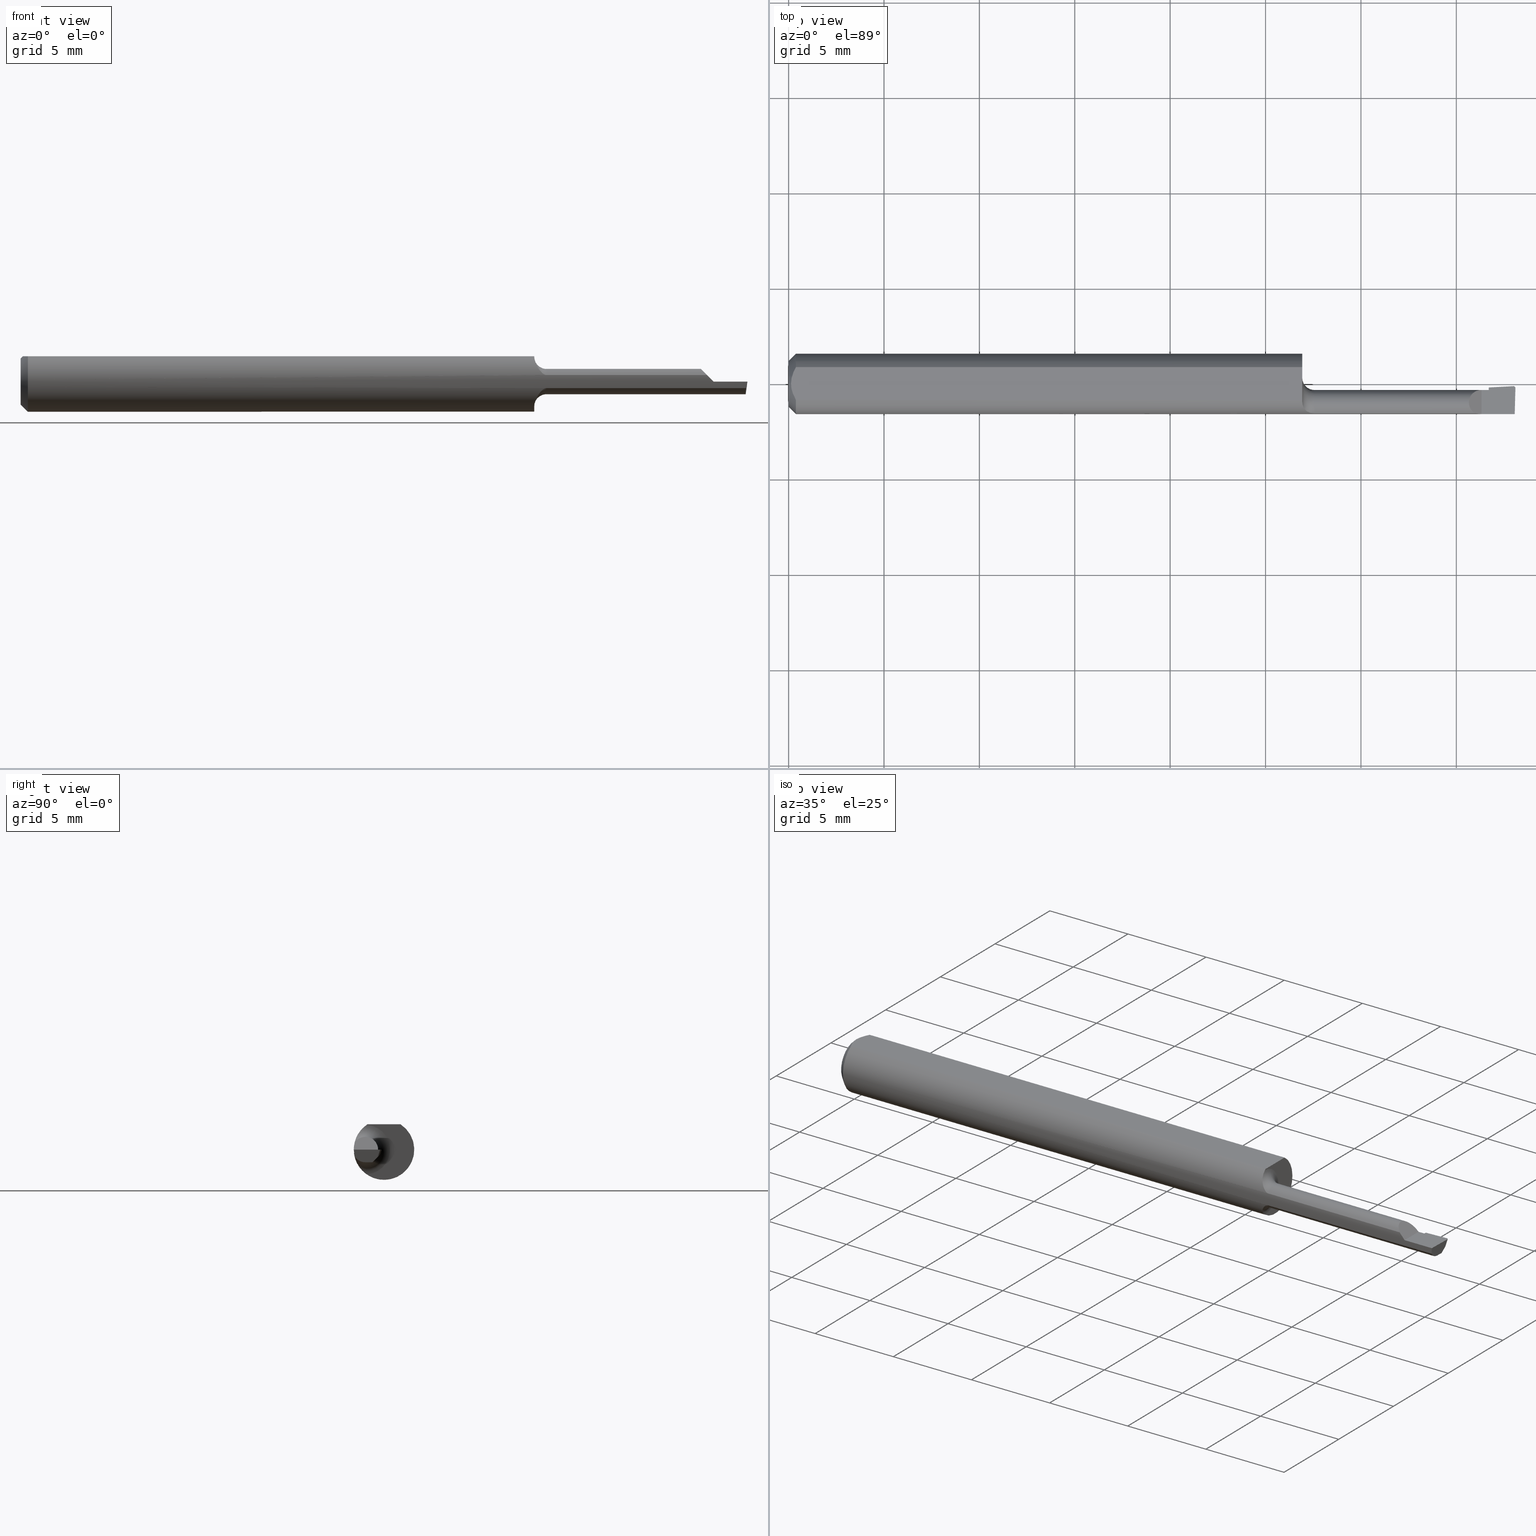
[diagram: canonical four-view strip — front | top / right | iso, engineering-drawing reading convention]
A machine part, canonical four-view strip (front | top / right | iso — engineering-drawing reading convention). The complete STEP part file that produces these views, byte-faithful:
ISO-10303-21;
HEADER;
FILE_DESCRIPTION (( 'STEP AP214' ),
    '1' );
FILE_NAME ('B060400R.STEP',
    '2020-05-08T20:18:05',
    ( '' ),
    ( '' ),
    'SwSTEP 2.0',
    'SolidWorks 2018',
    '' );
FILE_SCHEMA (( 'AUTOMOTIVE_DESIGN' ));
ENDSEC;

DATA;
#1 = FACE_OUTER_BOUND ( 'NONE', #242, .T. ) ;
#2 = SURFACE_STYLE_FILL_AREA ( #249 ) ;
#3 = ORIENTED_EDGE ( 'NONE', *, *, #261, .F. ) ;
#4 = AXIS2_PLACEMENT_3D ( 'NONE', #352, #344, #346 ) ;
#5 = LENGTH_MEASURE_WITH_UNIT ( LENGTH_MEASURE( 0.02539999999999999897 ), #191 );
#6 = EDGE_CURVE ( 'NONE', #529, #19, #409, .T. ) ;
#7 = ORIENTED_EDGE ( 'NONE', *, *, #559, .T. ) ;
#8 = VECTOR ( 'NONE', #112, 39.37007874015748143 ) ;
#9 = CARTESIAN_POINT ( 'NONE',  ( 1.397264918367745690, -0.01235000000000002068, 0.03273508163225391510 ) ) ;
#10 =( BOUNDED_CURVE ( )  B_SPLINE_CURVE ( 3, ( #16, #68, #9, #574 ),
 .UNSPECIFIED., .F., .T. ) 
 B_SPLINE_CURVE_WITH_KNOTS ( ( 4, 4 ),
 ( 5.257763968430261059, 7.853981633974482790 ),
 .UNSPECIFIED. ) 
 CURVE ( )  GEOMETRIC_REPRESENTATION_ITEM ( )  RATIONAL_B_SPLINE_CURVE ( ( 1.000000000000000000, 0.5128803992295699610, 0.5128803992295699610, 1.000000000000000000 ) ) 
 REPRESENTATION_ITEM ( '' )  );
#11 = DIRECTION ( 'NONE',  ( 0.03700710955925855944, -0.7061377159181306817, 0.7071067811865434649 ) ) ;
#12 = CLOSED_SHELL ( 'NONE', ( #368, #316, #84, #608, #132, #313, #175, #40, #519, #219, #560, #415, #470, #517, #87, #564, #267 ) ) ;
#13 =( CONVERSION_BASED_UNIT ( 'INCH', #5 ) LENGTH_UNIT ( ) NAMED_UNIT ( #43 ) );
#14 = DIRECTION ( 'NONE',  ( 0.0000000000000000000, -1.000000000000000000, 2.134256245050205023E-17 ) ) ;
#15 = CARTESIAN_POINT ( 'NONE',  ( 1.495896647546085756, -0.03839254993447095698, -0.02614999999999999963 ) ) ;
#16 = CARTESIAN_POINT ( 'NONE',  ( 1.416434982561967981, -0.06085649350649352529, 0.01356501743803199302 ) ) ;
#17 =( BOUNDED_CURVE ( )  B_SPLINE_CURVE ( 3, ( #402, #206, #384, #547 ),
 .UNSPECIFIED., .F., .T. ) 
 B_SPLINE_CURVE_WITH_KNOTS ( ( 4, 4 ),
 ( 3.498408556467773600, 3.548590298948255839 ),
 .UNSPECIFIED. ) 
 CURVE ( )  GEOMETRIC_REPRESENTATION_ITEM ( )  RATIONAL_B_SPLINE_CURVE ( ( 1.000000000000000000, 0.9997901604025566380, 0.9997901604025566380, 1.000000000000000000 ) ) 
 REPRESENTATION_ITEM ( '' )  );
#18 = ORIENTED_EDGE ( 'NONE', *, *, #548, .T. ) ;
#19 = VERTEX_POINT ( 'NONE', #399 ) ;
#20 = EDGE_CURVE ( 'NONE', #391, #319, #502, .T. ) ;
#21 = DIRECTION ( 'NONE',  ( 0.0000000000000000000, 1.000000000000000000, 0.0000000000000000000 ) ) ;
#22 = DIRECTION ( 'NONE',  ( -1.000000000000000000, 5.691349986800549142E-18, -0.0000000000000000000 ) ) ;
#23 = CARTESIAN_POINT ( 'NONE',  ( 1.494960264754920720, -0.01103316446899473349, -0.006784436861484915114 ) ) ;
#24 = DIRECTION ( 'NONE',  ( 0.0000000000000000000, -1.000000000000000000, 0.0000000000000000000 ) ) ;
#25 = ORIENTED_EDGE ( 'NONE', *, *, #120, .F. ) ;
#26 = PLANE ( 'NONE',  #35 ) ;
#27 = CARTESIAN_POINT ( 'NONE',  ( 1.499949488805471187, -0.006278944696461584429, -5.017238828917651622E-19 ) ) ;
#28 = CARTESIAN_POINT ( 'NONE',  ( 1.493191430590185220, -0.02563133555234555633, -0.05089529022621226001 ) ) ;
#29 = FACE_OUTER_BOUND ( 'NONE', #183, .T. ) ;
#30 = EDGE_CURVE ( 'NONE', #473, #348, #371, .T. ) ;
#31 = CARTESIAN_POINT ( 'NONE',  ( 0.01500000000000000465, 0.03386738844375223462, 0.05234999999999997988 ) ) ;
#32 =( CONVERSION_BASED_UNIT ( 'INCH', #573 ) LENGTH_UNIT ( ) NAMED_UNIT ( #566 ) );
#33 = ORIENTED_EDGE ( 'NONE', *, *, #609, .F. ) ;
#34 = CARTESIAN_POINT ( 'NONE',  ( 0.006064493299689842180, 0.01189382783781397189, 0.05235000000000000070 ) ) ;
#35 = AXIS2_PLACEMENT_3D ( 'NONE', #459, #430, #296 ) ;
#36 =( BOUNDED_CURVE ( )  B_SPLINE_CURVE ( 3, ( #83, #603, #600, #213 ),
 .UNSPECIFIED., .F., .T. ) 
 B_SPLINE_CURVE_WITH_KNOTS ( ( 4, 4 ),
 ( 3.120530056913264350, 4.677555823278194858 ),
 .UNSPECIFIED. ) 
 CURVE ( )  GEOMETRIC_REPRESENTATION_ITEM ( )  RATIONAL_B_SPLINE_CURVE ( ( 1.000000000000000000, 0.8079724067867785076, 0.8079724067867785076, 1.000000000000000000 ) ) 
 REPRESENTATION_ITEM ( '' )  );
#37 = FILL_AREA_STYLE_COLOUR ( '', #523 ) ;
#38 = LINE ( 'NONE', #435, #292 ) ;
#39 = EDGE_CURVE ( 'NONE', #19, #357, #280, .T. ) ;
#40 = ADVANCED_FACE ( 'NONE', ( #1 ), #133, .T. ) ;
#41 = ORIENTED_EDGE ( 'NONE', *, *, #136, .T. ) ;
#42 = TOROIDAL_SURFACE ( 'NONE', #321, 0.05114999999999995245, 0.02500000000000000139 ) ;
#43 = DIMENSIONAL_EXPONENTS ( 1.000000000000000000, 0.0000000000000000000, 0.0000000000000000000, 0.0000000000000000000, 0.0000000000000000000, 0.0000000000000000000, 0.0000000000000000000 ) ;
#44 = ORIENTED_EDGE ( 'NONE', *, *, #79, .F. ) ;
#45 = AXIS2_PLACEMENT_3D ( 'NONE', #193, #494, #146 ) ;
#46 = ORIENTED_EDGE ( 'NONE', *, *, #113, .T. ) ;
#47 = EDGE_CURVE ( 'NONE', #331, #353, #209, .T. ) ;
#48 = VECTOR ( 'NONE', #544, 39.37007874015748143 ) ;
#49 = LINE ( 'NONE', #15, #428 ) ;
#50 = CARTESIAN_POINT ( 'NONE',  ( 0.009678036133109307534, -0.02325481837211496039, 0.05235000000000000070 ) ) ;
#51 = LINE ( 'NONE', #577, #405 ) ;
#52 = EDGE_CURVE ( 'NONE', #126, #471, #139, .T. ) ;
#53 = LINE ( 'NONE', #281, #423 ) ;
#54 = APPLICATION_PROTOCOL_DEFINITION ( 'draft international standard', 'automotive_design', 1998, #465 ) ;
#55 = AXIS2_PLACEMENT_3D ( 'NONE', #290, #446, #500 ) ;
#56 = CARTESIAN_POINT ( 'NONE',  ( 1.435089080240952830, -0.007751837155790511705, 0.0000000000000000000 ) ) ;
#57 = PRODUCT_DEFINITION ( 'UNKNOWN', '', #89, #451 ) ;
#58 = DIRECTION ( 'NONE',  ( 4.027150758739159230E-18, 0.7075914797155294922, 0.7066217501846282500 ) ) ;
#59 = ORIENTED_EDGE ( 'NONE', *, *, #6, .T. ) ;
#60 = ORIENTED_EDGE ( 'NONE', *, *, #140, .F. ) ;
#61 = CARTESIAN_POINT ( 'NONE',  ( 0.006057557792978140489, -0.01187252718384441616, 0.05234999999999998682 ) ) ;
#62 = CARTESIAN_POINT ( 'NONE',  ( 1.060000000000000275, 0.0000000000000000000, 0.0000000000000000000 ) ) ;
#63 = CONICAL_SURFACE ( 'NONE', #509, 0.06235000000000000264, 0.7853981633974594923 ) ;
#64 = EDGE_CURVE ( 'NONE', #19, #477, #51, .T. ) ;
#65 = VECTOR ( 'NONE', #253, 39.37007874015748143 ) ;
#66 = CARTESIAN_POINT ( 'NONE',  ( 1.494500809590397550, -0.007891856341998546714, -0.01000000000000000021 ) ) ;
#67 = CARTESIAN_POINT ( 'NONE',  ( 1.499230452013073922, -0.02381614967368950175, -0.02614999999999999963 ) ) ;
#68 = CARTESIAN_POINT ( 'NONE',  ( 1.388448686579328406, -0.04387553927410643012, 0.04155131342067137912 ) ) ;
#69 = CIRCLE ( 'NONE', #78, 0.06235000000000000264 ) ;
#70 = FACE_OUTER_BOUND ( 'NONE', #173, .T. ) ;
#71 = CARTESIAN_POINT ( 'NONE',  ( 0.0000000000000000000, 0.0000000000000000000, 0.0000000000000000000 ) ) ;
#72 = DIRECTION ( 'NONE',  ( 0.0000000000000000000, 0.0000000000000000000, 1.000000000000000000 ) ) ;
#73 = ORIENTED_EDGE ( 'NONE', *, *, #424, .T. ) ;
#74 = ORIENTED_EDGE ( 'NONE', *, *, #588, .F. ) ;
#75 = EDGE_LOOP ( 'NONE', ( #215, #421 ) ) ;
#76 = B_SPLINE_CURVE_WITH_KNOTS ( 'NONE', 3,
 ( #438, #228, #50, #61, #164, #351 ),
 .UNSPECIFIED., .F., .F.,
 ( 4, 2, 4 ),
 ( 0.002133667072902290657, 0.002585433046183636171, 0.003037199019464981685 ),
 .UNSPECIFIED. ) ;
#77 = PLANE ( 'NONE',  #370 ) ;
#78 = AXIS2_PLACEMENT_3D ( 'NONE', #62, #339, #21 ) ;
#79 = EDGE_CURVE ( 'NONE', #353, #134, #268, .T. ) ;
#80 = CYLINDRICAL_SURFACE ( 'NONE', #192, 0.02614999999999998229 ) ;
#81 = CARTESIAN_POINT ( 'NONE',  ( 1.080433207467613288, -0.06062583751170534663, 0.01462750901418235876 ) ) ;
#82 = ORIENTED_EDGE ( 'NONE', *, *, #225, .F. ) ;
#83 = CARTESIAN_POINT ( 'NONE',  ( 1.494702186530211918, -0.007889156140322761690, -0.01000784275356722715 ) ) ;
#84 = ADVANCED_FACE ( 'NONE', ( #29 ), #154, .T. ) ;
#85 = LINE ( 'NONE', #262, #513 ) ;
#86 = VECTOR ( 'NONE', #337, 39.37007874015747433 ) ;
#87 = ADVANCED_FACE ( 'NONE', ( #611 ), #295, .F. ) ;
#88 = EDGE_CURVE ( 'NONE', #391, #567, #380, .T. ) ;
#89 = PRODUCT_DEFINITION_FORMATION_WITH_SPECIFIED_SOURCE ( 'ANY', '', #212, .NOT_KNOWN. ) ;
#90 = ORIENTED_EDGE ( 'NONE', *, *, #113, .F. ) ;
#91 = LINE ( 'NONE', #388, #8 ) ;
#92 = VERTEX_POINT ( 'NONE', #458 ) ;
#93 =( GEOMETRIC_REPRESENTATION_CONTEXT ( 3 ) GLOBAL_UNCERTAINTY_ASSIGNED_CONTEXT ( ( #311 ) ) GLOBAL_UNIT_ASSIGNED_CONTEXT ( ( #101, #239, #170 ) ) REPRESENTATION_CONTEXT ( 'NONE', 'WORKASPACE' ) );
#94 = CARTESIAN_POINT ( 'NONE',  ( 2.249639673992782033E-32, -0.06234999999999999570, 1.836970198721027715E-16 ) ) ;
#95 = EDGE_CURVE ( 'NONE', #92, #477, #426, .T. ) ;
#96 = DIRECTION ( 'NONE',  ( -1.000000000000000000, -0.0000000000000000000, -0.0000000000000000000 ) ) ;
#97 = ORIENTED_EDGE ( 'NONE', *, *, #365, .F. ) ;
#98 = CIRCLE ( 'NONE', #4, 0.06235000000000000264 ) ;
#99 = DIRECTION ( 'NONE',  ( 0.0000000000000000000, 0.0000000000000000000, 1.000000000000000000 ) ) ;
#100 = DIRECTION ( 'NONE',  ( -1.000000000000000000, -0.0000000000000000000, -0.0000000000000000000 ) ) ;
#101 =( CONVERSION_BASED_UNIT ( 'INCH', #516 ) LENGTH_UNIT ( ) NAMED_UNIT ( #522 ) );
#102 = VECTOR ( 'NONE', #530, 39.37007874015748143 ) ;
#103 = PLANE ( 'NONE',  #288 ) ;
#104 = VERTEX_POINT ( 'NONE', #66 ) ;
#105 = CARTESIAN_POINT ( 'NONE',  ( 1.494702186530211918, -0.007889156140322761690, -0.01000784275356722715 ) ) ;
#106 = ADVANCED_BREP_SHAPE_REPRESENTATION ( 'B060400R', ( #542, #444 ), #93 ) ;
#107 = PLANE ( 'NONE',  #222 ) ;
#108 = CARTESIAN_POINT ( 'NONE',  ( 1.064028026996482579, -0.05183160029813502212, -0.03490759449541482734 ) ) ;
#109 = VERTEX_POINT ( 'NONE', #105 ) ;
#110 = VECTOR ( 'NONE', #602, 39.37007874015748143 ) ;
#111 = AXIS2_PLACEMENT_3D ( 'NONE', #23, #343, #149 ) ;
#112 = DIRECTION ( 'NONE',  ( 0.02617694830789744909, 0.9996573249755567048, -3.158139334226725337E-18 ) ) ;
#113 = EDGE_CURVE ( 'NONE', #104, #109, #425, .T. ) ;
#114 = CARTESIAN_POINT ( 'NONE',  ( 1.060000000000000275, -0.03575909090909097643, 0.05107651042656856377 ) ) ;
#115 = ORIENTED_EDGE ( 'NONE', *, *, #417, .T. ) ;
#116 = CARTESIAN_POINT ( 'NONE',  ( 1.495893833867097289, -0.03849999999999999256, -0.02614999999999999963 ) ) ;
#117 = DIRECTION ( 'NONE',  ( 1.760906539122070846E-18, 0.3094005013232339341, 0.9509318218363140840 ) ) ;
#118 = CARTESIAN_POINT ( 'NONE',  ( 1.085000000000000187, -0.06085649350649354611, -0.01356501743803189067 ) ) ;
#119 = EDGE_LOOP ( 'NONE', ( #271, #33, #554 ) ) ;
#120 = EDGE_CURVE ( 'NONE', #134, #529, #174, .T. ) ;
#121 = CARTESIAN_POINT ( 'NONE',  ( 0.0000000000000000000, 0.0000000000000000000, 0.0000000000000000000 ) ) ;
#122 = PRODUCT_RELATED_PRODUCT_CATEGORY ( 'part', '', ( #212 ) ) ;
#123 = DIRECTION ( 'NONE',  ( 0.0000000000000000000, 0.0000000000000000000, -1.000000000000000000 ) ) ;
#124 = CARTESIAN_POINT ( 'NONE',  ( 1.061991179683118292, -0.04967762520113500752, 0.03862103888887214592 ) ) ;
#125 = EDGE_LOOP ( 'NONE', ( #604, #524, #515, #375, #147, #592 ) ) ;
#126 = VERTEX_POINT ( 'NONE', #244 ) ;
#127 = SURFACE_SIDE_STYLE ('',( #266 ) ) ;
#128 = AXIS2_PLACEMENT_3D ( 'NONE', #330, #361, #400 ) ;
#129 = EDGE_CURVE ( 'NONE', #341, #319, #76, .T. ) ;
#130 = ORIENTED_EDGE ( 'NONE', *, *, #176, .T. ) ;
#131 = LINE ( 'NONE', #297, #328 ) ;
#132 = ADVANCED_FACE ( 'NONE', ( #474 ), #586, .F. ) ;
#133 = CONICAL_SURFACE ( 'NONE', #232, 0.06235000000000000264, 0.7853981633974594923 ) ;
#134 = VERTEX_POINT ( 'NONE', #431 ) ;
#135 = VERTEX_POINT ( 'NONE', #248 ) ;
#136 = EDGE_CURVE ( 'NONE', #555, #529, #10, .T. ) ;
#137 =( BOUNDED_CURVE ( )  B_SPLINE_CURVE ( 3, ( #287, #342, #299, #301 ),
 .UNSPECIFIED., .F., .T. ) 
 B_SPLINE_CURVE_WITH_KNOTS ( ( 4, 4 ),
 ( 4.712388980384689674, 4.931705360090145263 ),
 .UNSPECIFIED. ) 
 CURVE ( )  GEOMETRIC_REPRESENTATION_ITEM ( )  RATIONAL_B_SPLINE_CURVE ( ( 1.000000000000000000, 0.9959957088194145713, 0.9959957088194145713, 1.000000000000000000 ) ) 
 REPRESENTATION_ITEM ( '' )  );
#138 = PLANE ( 'NONE',  #583 ) ;
#139 = CIRCLE ( 'NONE', #317, 0.06235000000000000264 ) ;
#140 = EDGE_CURVE ( 'NONE', #473, #579, #563, .T. ) ;
#141 = CARTESIAN_POINT ( 'NONE',  ( 1.080425629910829910, -0.06062459270466517836, -0.01463238755247351676 ) ) ;
#142 = DIRECTION ( 'NONE',  ( 0.9986295347545746104, 0.05233595624293017889, -0.0000000000000000000 ) ) ;
#143 = CARTESIAN_POINT ( 'NONE',  ( 1.445000000000000062, 0.003267572139432644955, 0.0000000000000000000 ) ) ;
#144 = CARTESIAN_POINT ( 'NONE',  ( 0.01500000000000000465, 0.0000000000000000000, -0.06235000000000000264 ) ) ;
#145 = CARTESIAN_POINT ( 'NONE',  ( 1.068001007934660240, -0.05603364408257451718, -0.02766379716794686514 ) ) ;
#146 = DIRECTION ( 'NONE',  ( 0.0000000000000000000, -1.000000000000000000, 0.0000000000000000000 ) ) ;
#147 = ORIENTED_EDGE ( 'NONE', *, *, #152, .T. ) ;
#148 = ORIENTED_EDGE ( 'NONE', *, *, #196, .T. ) ;
#149 = DIRECTION ( 'NONE',  ( 0.0000000000000000000, 0.9489888143754034999, -0.3153097369101784397 ) ) ;
#150 = PRODUCT_DEFINITION_SHAPE ( 'NONE', 'NONE',  #57 ) ;
#151 = DIRECTION ( 'NONE',  ( 1.000000000000000000, 0.0000000000000000000, 0.0000000000000000000 ) ) ;
#152 = EDGE_CURVE ( 'NONE', #331, #135, #276, .T. ) ;
#153 = DIRECTION ( 'NONE',  ( 1.000000000000000000, 0.0000000000000000000, 0.0000000000000000000 ) ) ;
#154 = CYLINDRICAL_SURFACE ( 'NONE', #487, 0.06235000000000000264 ) ;
#155 = ORIENTED_EDGE ( 'NONE', *, *, #218, .T. ) ;
#156 = DIRECTION ( 'NONE',  ( -0.7071067811865516806, 0.0000000000000000000, 0.7071067811865431318 ) ) ;
#157 = DIRECTION ( 'NONE',  ( 0.0000000000000000000, 0.0000000000000000000, -1.000000000000000000 ) ) ;
#158 = DIRECTION ( 'NONE',  ( 0.0000000000000000000, 0.0000000000000000000, 1.000000000000000000 ) ) ;
#159 = CARTESIAN_POINT ( 'NONE',  ( 1.060000000000000275, 0.1123499999999999915, 0.05234999999999998682 ) ) ;
#160 = LINE ( 'NONE', #597, #483 ) ;
#161 = CARTESIAN_POINT ( 'NONE',  ( 1.062503775457219524, -0.04920046092876605853, -0.03856495364018283634 ) ) ;
#162 = ORIENTED_EDGE ( 'NONE', *, *, #47, .T. ) ;
#163 = CARTESIAN_POINT ( 'NONE',  ( 1.494960264754920720, -0.01103316446899473349, -0.006784436861484915114 ) ) ;
#164 = CARTESIAN_POINT ( 'NONE',  ( 0.004999999999998879473, -0.005957634400466955450, 0.05235000000000000070 ) ) ;
#165 = EDGE_LOOP ( 'NONE', ( #214, #259, #596, #585, #234 ) ) ;
#166 = CARTESIAN_POINT ( 'NONE',  ( 1.060000000000000275, -0.03575909090909097643, 0.05107651042656856377 ) ) ;
#167 = ORIENTED_EDGE ( 'NONE', *, *, #525, .T. ) ;
#168 = CARTESIAN_POINT ( 'NONE',  ( 0.01218518006020415795, 0.02868529347538067639, 0.05235000000000000070 ) ) ;
#169 = EDGE_CURVE ( 'NONE', #178, #493, #17, .T. ) ;
#170 =( NAMED_UNIT ( * ) SI_UNIT ( $, .STERADIAN. ) SOLID_ANGLE_UNIT ( ) );
#171 = CARTESIAN_POINT ( 'NONE',  ( 1.076638124316706691, -0.05991341419477896196, 0.01731585959404105882 ) ) ;
#172 = LINE ( 'NONE', #159, #540 ) ;
#173 = EDGE_LOOP ( 'NONE', ( #229, #389, #537, #601, #495 ) ) ;
#174 = LINE ( 'NONE', #198, #274 ) ;
#175 = ADVANCED_FACE ( 'NONE', ( #207 ), #406, .F. ) ;
#176 = EDGE_CURVE ( 'NONE', #331, #224, #220, .T. ) ;
#177 = ORIENTED_EDGE ( 'NONE', *, *, #182, .F. ) ;
#178 = VERTEX_POINT ( 'NONE', #410 ) ;
#179 = EDGE_LOOP ( 'NONE', ( #208, #433, #511, #598 ) ) ;
#180 = FACE_OUTER_BOUND ( 'NONE', #309, .T. ) ;
#181 = CARTESIAN_POINT ( 'NONE',  ( 1.445000000000000062, -0.006227276823266426724, 0.003089297215203672554 ) ) ;
#182 = EDGE_CURVE ( 'NONE', #224, #326, #355, .T. ) ;
#183 = EDGE_LOOP ( 'NONE', ( #283, #162, #482, #243, #457, #282, #74, #155, #97, #467, #203, #397, #177 ) ) ;
#184 = ORIENTED_EDGE ( 'NONE', *, *, #448, .T. ) ;
#185 = CARTESIAN_POINT ( 'NONE',  ( 1.497375706250378302, -0.06185016300931096139, -0.009107135837653953722 ) ) ;
#186 = SURFACE_SIDE_STYLE ('',( #2 ) ) ;
#187 = CARTESIAN_POINT ( 'NONE',  ( 1.435259130070997813, -0.01099658120660709781, -0.01000000000000000021 ) ) ;
#188 = ORIENTED_EDGE ( 'NONE', *, *, #88, .F. ) ;
#189 = SURFACE_STYLE_USAGE ( .BOTH. , #186 ) ;
#190 = CARTESIAN_POINT ( 'NONE',  ( 1.498481216548989137, -0.06235000000000005121, 1.949268155119779707E-19 ) ) ;
#191 =( LENGTH_UNIT ( ) NAMED_UNIT ( * ) SI_UNIT ( $, .METRE. ) );
#192 = AXIS2_PLACEMENT_3D ( 'NONE', #582, #440, #538 ) ;
#193 = CARTESIAN_POINT ( 'NONE',  ( 1.060000000000000275, -0.03849999999999999256, 0.0000000000000000000 ) ) ;
#194 = EDGE_LOOP ( 'NONE', ( #535, #527, #60, #553 ) ) ;
#195 = VECTOR ( 'NONE', #260, 39.37007874015747433 ) ;
#196 = EDGE_CURVE ( 'NONE', #319, #126, #315, .T. ) ;
#197 = CARTESIAN_POINT ( 'NONE',  ( 1.496274287139041981, -0.02397107570993201389, -0.02614999999999999963 ) ) ;
#198 = CARTESIAN_POINT ( 'NONE',  ( 1.429999999999999938, -0.2500000000000000555, 8.572527594031471957E-18 ) ) ;
#199 = CARTESIAN_POINT ( 'NONE',  ( 1.494500809590397550, -0.007891856341998546714, -0.01000000000000000021 ) ) ;
#200 =( LENGTH_UNIT ( ) NAMED_UNIT ( * ) SI_UNIT ( $, .METRE. ) );
#201 = DIRECTION ( 'NONE',  ( 0.0000000000000000000, -1.000000000000000000, 0.0000000000000000000 ) ) ;
#202 = DIRECTION ( 'NONE',  ( -0.0000000000000000000, 1.000000000000000000, -0.0000000000000000000 ) ) ;
#203 = ORIENTED_EDGE ( 'NONE', *, *, #347, .T. ) ;
#204 = AXIS2_PLACEMENT_3D ( 'NONE', #497, #22, #24 ) ;
#205 = DIRECTION ( 'NONE',  ( -5.691349986800549142E-18, -1.000000000000000000, 7.598598113218357399E-17 ) ) ;
#206 = CARTESIAN_POINT ( 'NONE',  ( 1.495951054303326311, -0.004563963874761001356, -1.205688142659576651E-20 ) ) ;
#207 = FACE_OUTER_BOUND ( 'NONE', #75, .T. ) ;
#208 = ORIENTED_EDGE ( 'NONE', *, *, #378, .T. ) ;
#209 =( BOUNDED_CURVE ( )  B_SPLINE_CURVE ( 3, ( #541, #185, #528, #190 ),
 .UNSPECIFIED., .F., .T. ) 
 B_SPLINE_CURVE_WITH_KNOTS ( ( 4, 4 ),
 ( 1.141430502809118508, 1.360746882514575651 ),
 .UNSPECIFIED. ) 
 CURVE ( )  GEOMETRIC_REPRESENTATION_ITEM ( )  RATIONAL_B_SPLINE_CURVE ( ( 1.000000000000000000, 0.9959957088194145713, 0.9959957088194145713, 1.000000000000000000 ) ) 
 REPRESENTATION_ITEM ( '' )  );
#210 = DIRECTION ( 'NONE',  ( -1.000000000000000000, 5.691349986800549142E-18, -0.0000000000000000000 ) ) ;
#211 = CARTESIAN_POINT ( 'NONE',  ( 1.495648902069280251, -0.04785356799146874007, -0.02614999999999998576 ) ) ;
#212 = PRODUCT ( 'B060400R', 'B060400R', '', ( #245 ) ) ;
#213 = CARTESIAN_POINT ( 'NONE',  ( 1.497721008238358742, -0.01418889696632155868, -0.01645694292453164093 ) ) ;
#214 = ORIENTED_EDGE ( 'NONE', *, *, #273, .F. ) ;
#215 = ORIENTED_EDGE ( 'NONE', *, *, #225, .T. ) ;
#216 =( NAMED_UNIT ( * ) SI_UNIT ( $, .STERADIAN. ) SOLID_ANGLE_UNIT ( ) );
#217 = DIRECTION ( 'NONE',  ( -1.000000000000000000, 5.691349986800549142E-18, -0.0000000000000000000 ) ) ;
#218 = EDGE_CURVE ( 'NONE', #372, #341, #416, .T. ) ;
#219 = ADVANCED_FACE ( 'NONE', ( #531 ), #77, .T. ) ;
#220 = LINE ( 'NONE', #533, #102 ) ;
#221 = ORIENTED_EDGE ( 'NONE', *, *, #246, .F. ) ;
#222 = AXIS2_PLACEMENT_3D ( 'NONE', #386, #335, #14 ) ;
#223 = EDGE_LOOP ( 'NONE', ( #188, #369, #148, #475, #324 ) ) ;
#224 = VERTEX_POINT ( 'NONE', #118 ) ;
#225 = EDGE_CURVE ( 'NONE', #567, #391, #407, .T. ) ;
#226 = CARTESIAN_POINT ( 'NONE',  ( 1.082616656301558011, -0.06085649350649355999, -0.01356501743803187505 ) ) ;
#227 = ORIENTED_EDGE ( 'NONE', *, *, #485, .F. ) ;
#228 = CARTESIAN_POINT ( 'NONE',  ( 0.01216137397042175820, -0.02864146636719541034, 0.05235000000000000070 ) ) ;
#229 = ORIENTED_EDGE ( 'NONE', *, *, #498, .F. ) ;
#230 = CARTESIAN_POINT ( 'NONE',  ( 1.416434982561967981, -0.06085649350649352529, 0.01356501743803199302 ) ) ;
#231 = VECTOR ( 'NONE', #117, 39.37007874015748143 ) ;
#232 = AXIS2_PLACEMENT_3D ( 'NONE', #429, #395, #123 ) ;
#233 = CARTESIAN_POINT ( 'NONE',  ( 1.060000000000000275, -0.04345517994939344930, 0.04568841430687983762 ) ) ;
#234 = ORIENTED_EDGE ( 'NONE', *, *, #218, .F. ) ;
#235 = SHAPE_DEFINITION_REPRESENTATION ( #150, #106 ) ;
#236 = ORIENTED_EDGE ( 'NONE', *, *, #152, .F. ) ;
#237 = ORIENTED_EDGE ( 'NONE', *, *, #64, .F. ) ;
#238 = DIRECTION ( 'NONE',  ( 0.0000000000000000000, 0.0000000000000000000, 1.000000000000000000 ) ) ;
#239 =( NAMED_UNIT ( * ) PLANE_ANGLE_UNIT ( ) SI_UNIT ( $, .RADIAN. ) );
#240 = STYLED_ITEM ( 'NONE', ( #349 ), #106 ) ;
#241 = CARTESIAN_POINT ( 'NONE',  ( 1.496854179736618162, -0.06085649350649351141, -0.01356501743803198955 ) ) ;
#242 = EDGE_LOOP ( 'NONE', ( #379, #82, #305, #526, #536 ) ) ;
#243 = ORIENTED_EDGE ( 'NONE', *, *, #609, .T. ) ;
#244 = CARTESIAN_POINT ( 'NONE',  ( 0.01500000000000000465, 0.03386738844375223462, 0.05234999999999997988 ) ) ;
#245 = PRODUCT_CONTEXT ( 'NONE', #256, 'mechanical' ) ;
#246 = EDGE_CURVE ( 'NONE', #135, #357, #376, .T. ) ;
#247 = CARTESIAN_POINT ( 'NONE',  ( 0.004999999999989931769, 7.898418181085889318E-16, 0.05235000000000000070 ) ) ;
#248 = CARTESIAN_POINT ( 'NONE',  ( 1.495893833867097289, -0.03849999999999999256, -0.02614999999999999963 ) ) ;
#249 = FILL_AREA_STYLE ('',( #436 ) ) ;
#250 = CARTESIAN_POINT ( 'NONE',  ( 1.085000000000000187, -0.03849999999999999256, 0.0000000000000000000 ) ) ;
#251 = VECTOR ( 'NONE', #329, 39.37007874015747433 ) ;
#252 = ORIENTED_EDGE ( 'NONE', *, *, #169, .T. ) ;
#253 = DIRECTION ( 'NONE',  ( -1.000000000000000000, -0.0000000000000000000, -0.0000000000000000000 ) ) ;
#254 = DIRECTION ( 'NONE',  ( 0.0000000000000000000, 0.9489888143754034999, -0.3153097369101784397 ) ) ;
#255 = ORIENTED_EDGE ( 'NONE', *, *, #396, .F. ) ;
#256 = APPLICATION_CONTEXT ( 'automotive_design' ) ;
#257 = VERTEX_POINT ( 'NONE', #302 ) ;
#258 = STYLED_ITEM ( 'NONE', ( #488 ), #542 ) ;
#259 = ORIENTED_EDGE ( 'NONE', *, *, #347, .F. ) ;
#260 = DIRECTION ( 'NONE',  ( -0.1238567106546049346, -0.3128818877194481374, -0.9416817082023715146 ) ) ;
#261 = EDGE_CURVE ( 'NONE', #493, #477, #160, .T. ) ;
#262 = CARTESIAN_POINT ( 'NONE',  ( 1.445000000000000062, -0.03849999999999999256, -0.02614999999999999963 ) ) ;
#263 = ORIENTED_EDGE ( 'NONE', *, *, #261, .T. ) ;
#264 = LINE ( 'NONE', #187, #300 ) ;
#265 = CARTESIAN_POINT ( 'NONE',  ( 1.085000000000000187, -0.06085649350649354611, 0.01356501743803188893 ) ) ;
#266 = SURFACE_STYLE_FILL_AREA ( #466 ) ;
#267 = ADVANCED_FACE ( 'NONE', ( #308 ), #565, .T. ) ;
#268 = LINE ( 'NONE', #94, #65 ) ;
#269 = FACE_OUTER_BOUND ( 'NONE', #119, .T. ) ;
#270 = EDGE_LOOP ( 'NONE', ( #545, #115, #489, #7 ) ) ;
#271 = ORIENTED_EDGE ( 'NONE', *, *, #136, .F. ) ;
#272 = PRESENTATION_LAYER_ASSIGNMENT (  '', '', ( #240 ) ) ;
#273 = EDGE_CURVE ( 'NONE', #257, #372, #172, .T. ) ;
#274 = VECTOR ( 'NONE', #202, 39.37007874015748143 ) ;
#275 = CARTESIAN_POINT ( 'NONE',  ( 0.0000000000000000000, 0.0000000000000000000, 0.0000000000000000000 ) ) ;
#276 =( BOUNDED_CURVE ( )  B_SPLINE_CURVE ( 3, ( #336, #340, #211, #116 ),
 .UNSPECIFIED., .F., .F. ) 
 B_SPLINE_CURVE_WITH_KNOTS ( ( 4, 4 ),
 ( 5.467813412710585297, 6.493234751459907805 ),
 .UNSPECIFIED. ) 
 CURVE ( )  GEOMETRIC_REPRESENTATION_ITEM ( )  RATIONAL_B_SPLINE_CURVE ( ( 1.000000000000000000, 0.9142786772072530876, 0.9142786772072530876, 1.000000000000000000 ) ) 
 REPRESENTATION_ITEM ( '' )  );
#277 = CARTESIAN_POINT ( 'NONE',  ( 0.0000000000000000000, 0.0000000000000000000, 0.0000000000000000000 ) ) ;
#278 = DIRECTION ( 'NONE',  ( 0.04977445222137686504, -0.9497531263931375811, 0.3090169943749419001 ) ) ;
#279 = FACE_OUTER_BOUND ( 'NONE', #612, .T. ) ;
#280 = CIRCLE ( 'NONE', #204, 0.02614999999999999963 ) ;
#281 = CARTESIAN_POINT ( 'NONE',  ( 1.445000000000000062, 0.001400170356867223550, 0.001869964503928212745 ) ) ;
#282 = ORIENTED_EDGE ( 'NONE', *, *, #518, .F. ) ;
#283 = ORIENTED_EDGE ( 'NONE', *, *, #176, .F. ) ;
#284 = DIRECTION ( 'NONE',  ( -0.02617694830789744562, -0.9996573249755567048, 2.144436937150372745E-17 ) ) ;
#285 = ORIENTED_EDGE ( 'NONE', *, *, #314, .F. ) ;
#286 = DIRECTION ( 'NONE',  ( 1.000000000000000000, -5.691349986800549142E-18, 0.0000000000000000000 ) ) ;
#287 = CARTESIAN_POINT ( 'NONE',  ( 1.429999999999999938, -0.06235000000000005121, 8.572527594031471957E-18 ) ) ;
#288 = AXIS2_PLACEMENT_3D ( 'NONE', #56, #278, #576 ) ;
#289 = UNCERTAINTY_MEASURE_WITH_UNIT (LENGTH_MEASURE( 1.000000000000000082E-05 ), #32, 'distance_accuracy_value', 'NONE');
#290 = CARTESIAN_POINT ( 'NONE',  ( 1.500000000000000222, -0.2500000000000000555, 0.0000000000000000000 ) ) ;
#291 = EDGE_CURVE ( 'NONE', #318, #224, #550, .T. ) ;
#292 = VECTOR ( 'NONE', #492, 39.37007874015748143 ) ;
#293 = CARTESIAN_POINT ( 'NONE',  ( 0.01500000000000000465, 0.0000000000000000000, 0.0000000000000000000 ) ) ;
#294 =( NAMED_UNIT ( * ) PLANE_ANGLE_UNIT ( ) SI_UNIT ( $, .RADIAN. ) );
#295 = PLANE ( 'NONE',  #521 ) ;
#296 = DIRECTION ( 'NONE',  ( 0.1219104985253028767, 0.0000000000000000000, 0.9925410975618652598 ) ) ;
#297 = CARTESIAN_POINT ( 'NONE',  ( 0.0000000000000000000, 0.03386738844375223462, 0.05234999999999997988 ) ) ;
#298 = CARTESIAN_POINT ( 'NONE',  ( 1.488288021548567090E-19, -0.01235000000000001548, 1.836970198721027715E-16 ) ) ;
#299 = CARTESIAN_POINT ( 'NONE',  ( 1.420892864162346170, -0.06185016300931096139, 0.009107135837653894742 ) ) ;
#300 = VECTOR ( 'NONE', #142, 39.37007874015748854 ) ;
#301 = CARTESIAN_POINT ( 'NONE',  ( 1.416434982561967981, -0.06085649350649352529, 0.01356501743803199302 ) ) ;
#302 = CARTESIAN_POINT ( 'NONE',  ( 1.060000000000000275, 0.03386738844375224156, 0.05235000000000000070 ) ) ;
#303 = AXIS2_PLACEMENT_3D ( 'NONE', #71, #151, #157 ) ;
#304 = DIRECTION ( 'NONE',  ( 1.000000000000000000, -5.691349986800549142E-18, 0.0000000000000000000 ) ) ;
#305 = ORIENTED_EDGE ( 'NONE', *, *, #575, .T. ) ;
#306 = DIRECTION ( 'NONE',  ( 0.0000000000000000000, 1.000000000000000000, -2.134256245050205023E-17 ) ) ;
#307 = CARTESIAN_POINT ( 'NONE',  ( 0.004999999999999268051, 0.005945714695019511074, 0.05235000000000000070 ) ) ;
#308 = FACE_OUTER_BOUND ( 'NONE', #194, .T. ) ;
#309 = EDGE_LOOP ( 'NONE', ( #236, #130, #373, #570, #41, #59, #479, #221 ) ) ;
#310 = CARTESIAN_POINT ( 'NONE',  ( 1.070446013526555662, -0.05765668881463201917, 0.02399993265345986074 ) ) ;
#311 = UNCERTAINTY_MEASURE_WITH_UNIT (LENGTH_MEASURE( 1.000000000000000082E-05 ), #101, 'distance_accuracy_value', 'NONE');
#312 = MECHANICAL_DESIGN_GEOMETRIC_PRESENTATION_REPRESENTATION (  '', ( #240 ), #345 ) ;
#313 = ADVANCED_FACE ( 'NONE', ( #269 ), #354, .F. ) ;
#314 = EDGE_CURVE ( 'NONE', #610, #348, #581, .T. ) ;
#315 = B_SPLINE_CURVE_WITH_KNOTS ( 'NONE', 3,
 ( #512, #307, #34, #510, #168, #31 ),
 .UNSPECIFIED., .F., .F.,
 ( 4, 2, 4 ),
 ( 0.003037199019464981685, 0.003488061124369676216, 0.003938923229274370746 ),
 .UNSPECIFIED. ) ;
#316 = ADVANCED_FACE ( 'NONE', ( #607 ), #63, .T. ) ;
#317 = AXIS2_PLACEMENT_3D ( 'NONE', #593, #100, #590 ) ;
#318 = VERTEX_POINT ( 'NONE', #591 ) ;
#319 = VERTEX_POINT ( 'NONE', #247 ) ;
#320 = CIRCLE ( 'NONE', #569, 0.06235000000000000264 ) ;
#321 = AXIS2_PLACEMENT_3D ( 'NONE', #383, #217, #514 ) ;
#322 = EDGE_CURVE ( 'NONE', #579, #178, #613, .T. ) ;
#323 = ORIENTED_EDGE ( 'NONE', *, *, #322, .T. ) ;
#324 = ORIENTED_EDGE ( 'NONE', *, *, #575, .F. ) ;
#325 = CARTESIAN_POINT ( 'NONE',  ( 1.497747042380715321, -0.01401286398104843213, -0.01628251370808208448 ) ) ;
#326 = VERTEX_POINT ( 'NONE', #589 ) ;
#327 = CARTESIAN_POINT ( 'NONE',  ( 1.085000000000000187, -0.06085649350649354611, -0.01356501743803189067 ) ) ;
#328 = VECTOR ( 'NONE', #153, 39.37007874015748143 ) ;
#329 = DIRECTION ( 'NONE',  ( 0.1238567106546049068, 0.3128818877194481374, 0.9416817082023715146 ) ) ;
#330 = CARTESIAN_POINT ( 'NONE',  ( 1.500000000000000222, 0.1123499999999999915, 0.05234999999999998682 ) ) ;
#331 = VERTEX_POINT ( 'NONE', #241 ) ;
#332 = CARTESIAN_POINT ( 'NONE',  ( 1.070470123245630845, -0.05766828269002156199, -0.02396978481147360451 ) ) ;
#333 = CARTESIAN_POINT ( 'NONE',  ( 0.0000000000000000000, 0.0000000000000000000, -0.04734999999999965625 ) ) ;
#334 = AXIS2_PLACEMENT_3D ( 'NONE', #121, #408, #72 ) ;
#335 = DIRECTION ( 'NONE',  ( 1.214679925209547374E-34, 2.134256245050205023E-17, 1.000000000000000000 ) ) ;
#336 = CARTESIAN_POINT ( 'NONE',  ( 1.496854179736618162, -0.06085649350649351141, -0.01356501743803198955 ) ) ;
#337 = DIRECTION ( 'NONE',  ( -0.1238567106546049068, -0.3128818877194480819, -0.9416817082023715146 ) ) ;
#338 = LINE ( 'NONE', #556, #195 ) ;
#339 = DIRECTION ( 'NONE',  ( 1.000000000000000000, -5.691349986800549142E-18, 0.0000000000000000000 ) ) ;
#340 = CARTESIAN_POINT ( 'NONE',  ( 1.495999030862416035, -0.05600443565134659990, -0.02156168979228885799 ) ) ;
#341 = VERTEX_POINT ( 'NONE', #543 ) ;
#342 = CARTESIAN_POINT ( 'NONE',  ( 1.425432715528476502, -0.06235000000000000264, 0.004567284471523349459 ) ) ;
#343 = DIRECTION ( 'NONE',  ( -0.1238567106546049068, -0.3128818877194480819, -0.9416817082023714036 ) ) ;
#344 = DIRECTION ( 'NONE',  ( 1.000000000000000000, -5.691349986800549142E-18, 0.0000000000000000000 ) ) ;
#345 =( GEOMETRIC_REPRESENTATION_CONTEXT ( 3 ) GLOBAL_UNCERTAINTY_ASSIGNED_CONTEXT ( ( #364 ) ) GLOBAL_UNIT_ASSIGNED_CONTEXT ( ( #13, #294, #403 ) ) REPRESENTATION_CONTEXT ( 'NONE', 'WORKASPACE' ) );
#346 = DIRECTION ( 'NONE',  ( 0.0000000000000000000, 1.000000000000000000, 0.0000000000000000000 ) ) ;
#347 = EDGE_CURVE ( 'NONE', #126, #257, #131, .T. ) ;
#348 = VERTEX_POINT ( 'NONE', #197 ) ;
#349 = PRESENTATION_STYLE_ASSIGNMENT (( #189 ) ) ;
#350 = DIRECTION ( 'NONE',  ( 0.9986295347545746104, 0.05233595624293017196, -5.584917072607462816E-19 ) ) ;
#351 = CARTESIAN_POINT ( 'NONE',  ( 0.004999999999989931769, 7.898418181085889318E-16, 0.05235000000000000070 ) ) ;
#352 = CARTESIAN_POINT ( 'NONE',  ( 1.060000000000000275, 0.0000000000000000000, 0.0000000000000000000 ) ) ;
#353 = VERTEX_POINT ( 'NONE', #443 ) ;
#354 = PLANE ( 'NONE',  #534 ) ;
#355 = B_SPLINE_CURVE_WITH_KNOTS ( 'NONE', 3,
 ( #327, #226, #141, #506, #427, #332, #145, #108, #161, #414, #413, #469 ),
 .UNSPECIFIED., .F., .F.,
 ( 4, 2, 2, 2, 2, 4 ),
 ( 1.959605866442545805E-07, 0.0001781565565329113149, 0.0003561171524791784050, 0.0007120383443717128022, 0.001067959536264247037, 0.001423880728156781596 ),
 .UNSPECIFIED. ) ;
#356 = CARTESIAN_POINT ( 'NONE',  ( 1.060000000000000275, 0.01264999999999995989, 0.0000000000000000000 ) ) ;
#357 = VERTEX_POINT ( 'NONE', #499 ) ;
#358 =( NAMED_UNIT ( * ) PLANE_ANGLE_UNIT ( ) SI_UNIT ( $, .RADIAN. ) );
#359 = ORIENTED_EDGE ( 'NONE', *, *, #6, .F. ) ;
#360 = PRESENTATION_LAYER_ASSIGNMENT (  '', '', ( #258 ) ) ;
#361 = DIRECTION ( 'NONE',  ( 0.0000000000000000000, -7.598598113218357399E-17, -1.000000000000000000 ) ) ;
#362 = ORIENTED_EDGE ( 'NONE', *, *, #169, .F. ) ;
#363 = DIRECTION ( 'NONE',  ( -1.000000000000000000, -0.0000000000000000000, -0.0000000000000000000 ) ) ;
#364 = UNCERTAINTY_MEASURE_WITH_UNIT (LENGTH_MEASURE( 1.000000000000000082E-05 ), #13, 'distance_accuracy_value', 'NONE');
#365 = EDGE_CURVE ( 'NONE', #471, #341, #320, .T. ) ;
#366 = CARTESIAN_POINT ( 'NONE',  ( 1.429999999999999938, -0.01235000000000007446, 8.572527594031471957E-18 ) ) ;
#367 = LINE ( 'NONE', #461, #110 ) ;
#368 = ADVANCED_FACE ( 'NONE', ( #571 ), #450, .T. ) ;
#369 = ORIENTED_EDGE ( 'NONE', *, *, #20, .T. ) ;
#370 = AXIS2_PLACEMENT_3D ( 'NONE', #356, #304, #599 ) ;
#371 = LINE ( 'NONE', #325, #385 ) ;
#372 = VERTEX_POINT ( 'NONE', #496 ) ;
#373 = ORIENTED_EDGE ( 'NONE', *, *, #291, .F. ) ;
#374 = EDGE_LOOP ( 'NONE', ( #463, #46, #18, #557, #285, #562 ) ) ;
#375 = ORIENTED_EDGE ( 'NONE', *, *, #47, .F. ) ;
#376 = LINE ( 'NONE', #456, #419 ) ;
#377 = FACE_OUTER_BOUND ( 'NONE', #125, .T. ) ;
#378 = EDGE_CURVE ( 'NONE', #326, #257, #69, .T. ) ;
#379 = ORIENTED_EDGE ( 'NONE', *, *, #20, .F. ) ;
#380 = CIRCLE ( 'NONE', #418, 0.04734999999999965625 ) ;
#381 = VERTEX_POINT ( 'NONE', #114 ) ;
#382 = CARTESIAN_POINT ( 'NONE',  ( 1.499885543027883239, -0.008720935421068738008, 2.550069910888991809E-20 ) ) ;
#383 = CARTESIAN_POINT ( 'NONE',  ( 1.085000000000000187, -0.03849999999999999256, 0.0000000000000000000 ) ) ;
#384 = CARTESIAN_POINT ( 'NONE',  ( 1.495883570650972771, -0.004565732920758079454, -3.792517541621783841E-21 ) ) ;
#385 = VECTOR ( 'NONE', #552, 39.37007874015748143 ) ;
#386 = CARTESIAN_POINT ( 'NONE',  ( 1.500000000000000444, -0.03849999999999999256, -0.02614999999999999963 ) ) ;
#387 = ORIENTED_EDGE ( 'NONE', *, *, #518, .T. ) ;
#388 = CARTESIAN_POINT ( 'NONE',  ( 1.493571836174457879, -0.2498316726062303483, 7.872230253345095579E-19 ) ) ;
#389 = ORIENTED_EDGE ( 'NONE', *, *, #559, .F. ) ;
#390 = CARTESIAN_POINT ( 'NONE',  ( 0.0000000000000000000, 0.0000000000000000000, 0.0000000000000000000 ) ) ;
#391 = VERTEX_POINT ( 'NONE', #394 ) ;
#392 = CARTESIAN_POINT ( 'NONE',  ( 1.445000000000000062, -0.02665824723320950329, -0.02614999999999999963 ) ) ;
#393 = MECHANICAL_DESIGN_GEOMETRIC_PRESENTATION_REPRESENTATION (  '', ( #258 ), #422 ) ;
#394 = CARTESIAN_POINT ( 'NONE',  ( 0.0000000000000000000, 6.717187693324806899E-18, 0.04734999999999965625 ) ) ;
#395 = DIRECTION ( 'NONE',  ( 1.000000000000000000, 0.0000000000000000000, 0.0000000000000000000 ) ) ;
#396 = EDGE_CURVE ( 'NONE', #381, #326, #464, .T. ) ;
#397 = ORIENTED_EDGE ( 'NONE', *, *, #378, .F. ) ;
#398 = LINE ( 'NONE', #580, #86 ) ;
#399 = CARTESIAN_POINT ( 'NONE',  ( 1.445000000000000062, -0.01235000000000000160, 1.836970198721029194E-16 ) ) ;
#400 = DIRECTION ( 'NONE',  ( 0.0000000000000000000, 1.000000000000000000, -7.598598113218357399E-17 ) ) ;
#401 = CARTESIAN_POINT ( 'NONE',  ( 1.496018489558516018, -0.004563963874760999621, 0.0000000000000000000 ) ) ;
#402 = CARTESIAN_POINT ( 'NONE',  ( 1.496018489558516018, -0.004563963874760999621, 0.0000000000000000000 ) ) ;
#403 =( NAMED_UNIT ( * ) SI_UNIT ( $, .STERADIAN. ) SOLID_ANGLE_UNIT ( ) );
#404 = DIRECTION ( 'NONE',  ( 1.000000000000000000, 0.0000000000000000000, 0.0000000000000000000 ) ) ;
#405 = VECTOR ( 'NONE', #595, 39.37007874015748143 ) ;
#406 = PLANE ( 'NONE',  #303 ) ;
#407 = CIRCLE ( 'NONE', #334, 0.04734999999999965625 ) ;
#408 = DIRECTION ( 'NONE',  ( -1.000000000000000000, -0.0000000000000000000, -0.0000000000000000000 ) ) ;
#409 = LINE ( 'NONE', #298, #539 ) ;
#410 = CARTESIAN_POINT ( 'NONE',  ( 1.496018489558516018, -0.004563963874760999621, 0.0000000000000000000 ) ) ;
#411 = APPLICATION_PROTOCOL_DEFINITION ( 'draft international standard', 'automotive_design', 1998, #256 ) ;
#412 =( LENGTH_UNIT ( ) NAMED_UNIT ( * ) SI_UNIT ( $, .METRE. ) );
#413 = CARTESIAN_POINT ( 'NONE',  ( 1.060000000000000497, -0.03960861689666768382, -0.04838142517902475209 ) ) ;
#414 = CARTESIAN_POINT ( 'NONE',  ( 1.060507341409734794, -0.04312570811744949328, -0.04525609687369244044 ) ) ;
#415 = ADVANCED_FACE ( 'NONE', ( #180 ), #80, .T. ) ;
#416 = LINE ( 'NONE', #437, #520 ) ;
#417 = EDGE_CURVE ( 'NONE', #348, #135, #49, .T. ) ;
#418 = AXIS2_PLACEMENT_3D ( 'NONE', #275, #96, #99 ) ;
#419 = VECTOR ( 'NONE', #210, 39.37007874015748143 ) ;
#420 = ORIENTED_EDGE ( 'NONE', *, *, #182, .T. ) ;
#421 = ORIENTED_EDGE ( 'NONE', *, *, #88, .T. ) ;
#422 =( GEOMETRIC_REPRESENTATION_CONTEXT ( 3 ) GLOBAL_UNCERTAINTY_ASSIGNED_CONTEXT ( ( #289 ) ) GLOBAL_UNIT_ASSIGNED_CONTEXT ( ( #32, #358, #216 ) ) REPRESENTATION_CONTEXT ( 'NONE', 'WORKASPACE' ) );
#423 = VECTOR ( 'NONE', #58, 39.37007874015748854 ) ;
#424 = EDGE_CURVE ( 'NONE', #353, #579, #91, .T. ) ;
#425 =( BOUNDED_CURVE ( )  B_SPLINE_CURVE ( 3, ( #199, #491, #486, #455 ),
 .UNSPECIFIED., .F., .T. ) 
 B_SPLINE_CURVE_WITH_KNOTS ( ( 4, 4 ),
 ( 3.070348314432769232, 3.120530056913264350 ),
 .UNSPECIFIED. ) 
 CURVE ( )  GEOMETRIC_REPRESENTATION_ITEM ( )  RATIONAL_B_SPLINE_CURVE ( ( 1.000000000000000000, 0.9997901604025566380, 0.9997901604025566380, 1.000000000000000000 ) ) 
 REPRESENTATION_ITEM ( '' )  );
#426 = LINE ( 'NONE', #181, #231 ) ;
#427 = CARTESIAN_POINT ( 'NONE',  ( 1.074988575955668990, -0.05943257586305055601, -0.01893293834469145578 ) ) ;
#428 = VECTOR ( 'NONE', #284, 39.37007874015748854 ) ;
#429 = CARTESIAN_POINT ( 'NONE',  ( 0.01500000000000000465, 0.0000000000000000000, 0.0000000000000000000 ) ) ;
#430 = DIRECTION ( 'NONE',  ( -0.9922060308645447302, 0.02598182930471736735, 0.1218693434051673768 ) ) ;
#431 = CARTESIAN_POINT ( 'NONE',  ( 1.429999999999999938, -0.06235000000000005121, 8.572527594031471957E-18 ) ) ;
#432 = ORIENTED_EDGE ( 'NONE', *, *, #95, .T. ) ;
#433 = ORIENTED_EDGE ( 'NONE', *, *, #273, .T. ) ;
#434 = AXIS2_PLACEMENT_3D ( 'NONE', #250, #549, #201 ) ;
#435 = CARTESIAN_POINT ( 'NONE',  ( 1.265000000000000124, -0.06085649350649351141, 0.01356501743803198955 ) ) ;
#436 = FILL_AREA_STYLE_COLOUR ( '', #478 ) ;
#437 = CARTESIAN_POINT ( 'NONE',  ( 0.0000000000000000000, -0.03386738844375222768, 0.05234999999999997988 ) ) ;
#438 = CARTESIAN_POINT ( 'NONE',  ( 0.01500000000000185213, -0.03386738844380016850, 0.05235000000000000070 ) ) ;
#439 = FACE_OUTER_BOUND ( 'NONE', #606, .T. ) ;
#440 = DIRECTION ( 'NONE',  ( -1.000000000000000000, 5.691349986800549142E-18, -0.0000000000000000000 ) ) ;
#441 = CARTESIAN_POINT ( 'NONE',  ( 1.435259130070997813, -0.01099658120660709781, -0.01000000000000000021 ) ) ;
#442 = DIRECTION ( 'NONE',  ( -1.000000000000000000, 5.691349986800549142E-18, 0.0000000000000000000 ) ) ;
#443 = CARTESIAN_POINT ( 'NONE',  ( 1.498481216548989137, -0.06235000000000005121, 1.949268155119779707E-19 ) ) ;
#444 = AXIS2_PLACEMENT_3D ( 'NONE', #277, #158, #587 ) ;
#445 = CARTESIAN_POINT ( 'NONE',  ( 1.498354115235414508, -0.004563963874760972733, -3.063469692903742922E-19 ) ) ;
#446 = DIRECTION ( 'NONE',  ( -1.224646799147352221E-16, 0.0000000000000000000, -1.000000000000000000 ) ) ;
#447 = PLANE ( 'NONE',  #128 ) ;
#448 = EDGE_CURVE ( 'NONE', #493, #104, #398, .T. ) ;
#449 = CARTESIAN_POINT ( 'NONE',  ( 0.01500000000000000465, 0.0000000000000000000, 0.0000000000000000000 ) ) ;
#450 = CYLINDRICAL_SURFACE ( 'NONE', #111, 0.004000000000000000951 ) ;
#451 = PRODUCT_DEFINITION_CONTEXT ( 'detailed design', #465, 'design' ) ;
#452 = DIRECTION ( 'NONE',  ( 0.0000000000000000000, -0.7075914797155294922, -0.7066217501846282500 ) ) ;
#453 = DIRECTION ( 'NONE',  ( 0.0000000000000000000, 0.0000000000000000000, -1.000000000000000000 ) ) ;
#454 = ORIENTED_EDGE ( 'NONE', *, *, #448, .F. ) ;
#455 = CARTESIAN_POINT ( 'NONE',  ( 1.494702186530211918, -0.007889156140322761690, -0.01000784275356722715 ) ) ;
#456 = CARTESIAN_POINT ( 'NONE',  ( 1.500000000000000444, -0.03849999999999999256, -0.02614999999999999963 ) ) ;
#457 = ORIENTED_EDGE ( 'NONE', *, *, #468, .F. ) ;
#458 = CARTESIAN_POINT ( 'NONE',  ( 1.445000000000000062, -0.01048608384534327649, -0.01000000000000000021 ) ) ;
#459 = CARTESIAN_POINT ( 'NONE',  ( 1.493721812006538530, -0.06248437740064490681, -0.03872030805950543719 ) ) ;
#460 = CARTESIAN_POINT ( 'NONE',  ( 1.068026871663806388, -0.05606084547731506051, 0.02761677482959689484 ) ) ;
#461 = CARTESIAN_POINT ( 'NONE',  ( 0.01500000000000000465, 0.0000000000000000000, -0.06235000000000000264 ) ) ;
#462 = CARTESIAN_POINT ( 'NONE',  ( 1.074979073382735129, -0.05942994764455450385, 0.01894190674338625327 ) ) ;
#463 = ORIENTED_EDGE ( 'NONE', *, *, #485, .T. ) ;
#464 = CIRCLE ( 'NONE', #45, 0.05114999999999995939 ) ;
#465 = APPLICATION_CONTEXT ( 'automotive_design' ) ;
#466 = FILL_AREA_STYLE ('',( #37 ) ) ;
#467 = ORIENTED_EDGE ( 'NONE', *, *, #52, .F. ) ;
#468 = EDGE_CURVE ( 'NONE', #318, #555, #38, .T. ) ;
#469 = CARTESIAN_POINT ( 'NONE',  ( 1.060000000000000275, -0.03575909090909097643, -0.05107651042656856377 ) ) ;
#470 = ADVANCED_FACE ( 'NONE', ( #503 ), #107, .F. ) ;
#471 = VERTEX_POINT ( 'NONE', #144 ) ;
#472 = FACE_OUTER_BOUND ( 'NONE', #165, .T. ) ;
#473 = VERTEX_POINT ( 'NONE', #578 ) ;
#474 = FACE_OUTER_BOUND ( 'NONE', #507, .T. ) ;
#475 = ORIENTED_EDGE ( 'NONE', *, *, #52, .T. ) ;
#476 = AXIS2_PLACEMENT_3D ( 'NONE', #163, #508, #254 ) ;
#477 = VERTEX_POINT ( 'NONE', #532 ) ;
#478 = COLOUR_RGB ( '',0.7529411764705882248, 0.7529411764705882248, 0.7529411764705882248 ) ;
#479 = ORIENTED_EDGE ( 'NONE', *, *, #39, .T. ) ;
#480 = B_SPLINE_CURVE_WITH_KNOTS ( 'NONE', 3,
 ( #166, #233, #124, #460, #310, #462, #171, #81, #561, #265 ),
 .UNSPECIFIED., .F., .F.,
 ( 4, 2, 2, 2, 4 ),
 ( 3.574606898954817336E-06, 0.0007127301008604467998, 0.001067307847841190895, 0.001244596721331566033, 0.001421885594821941387 ),
 .UNSPECIFIED. ) ;
#481 = CARTESIAN_POINT ( 'NONE',  ( 0.01500000000000000465, 7.635672792683746671E-18, 0.06235000000000000264 ) ) ;
#482 = ORIENTED_EDGE ( 'NONE', *, *, #79, .T. ) ;
#483 = VECTOR ( 'NONE', #551, 39.37007874015748143 ) ;
#484 = DIRECTION ( 'NONE',  ( -5.691349986800549142E-18, -1.000000000000000000, 0.0000000000000000000 ) ) ;
#485 = EDGE_CURVE ( 'NONE', #92, #104, #264, .T. ) ;
#486 = CARTESIAN_POINT ( 'NONE',  ( 1.494635438892867541, -0.007887419107517451219, -0.01000261479987765018 ) ) ;
#487 = AXIS2_PLACEMENT_3D ( 'NONE', #390, #504, #572 ) ;
#488 = PRESENTATION_STYLE_ASSIGNMENT (( #605 ) ) ;
#489 = ORIENTED_EDGE ( 'NONE', *, *, #246, .T. ) ;
#490 = CARTESIAN_POINT ( 'NONE',  ( 1.495816081083682247, -0.004569269899104524274, 5.158956982716681811E-19 ) ) ;
#491 = CARTESIAN_POINT ( 'NONE',  ( 1.494568299157687852, -0.007888319363652099292, -0.01000000000000002102 ) ) ;
#492 = DIRECTION ( 'NONE',  ( 1.000000000000000000, -5.691349986800549142E-18, 0.0000000000000000000 ) ) ;
#493 = VERTEX_POINT ( 'NONE', #490 ) ;
#494 = DIRECTION ( 'NONE',  ( -1.000000000000000000, 5.691349986800549142E-18, -0.0000000000000000000 ) ) ;
#495 = ORIENTED_EDGE ( 'NONE', *, *, #95, .F. ) ;
#496 = CARTESIAN_POINT ( 'NONE',  ( 1.060000000000000275, -0.03386738844380023788, 0.05235000000000000070 ) ) ;
#497 = CARTESIAN_POINT ( 'NONE',  ( 1.445000000000000062, -0.03849999999999999256, 0.0000000000000000000 ) ) ;
#498 = EDGE_CURVE ( 'NONE', #610, #92, #53, .T. ) ;
#499 = CARTESIAN_POINT ( 'NONE',  ( 1.445000000000000062, -0.03849999999999999256, -0.02614999999999999963 ) ) ;
#500 = DIRECTION ( 'NONE',  ( -1.000000000000000000, 0.0000000000000000000, 1.224646799147352221E-16 ) ) ;
#501 = ORIENTED_EDGE ( 'NONE', *, *, #291, .T. ) ;
#502 = LINE ( 'NONE', #481, #48 ) ;
#503 = FACE_OUTER_BOUND ( 'NONE', #270, .T. ) ;
#504 = DIRECTION ( 'NONE',  ( -1.000000000000000000, -0.0000000000000000000, -0.0000000000000000000 ) ) ;
#505 = DIRECTION ( 'NONE',  ( -0.7071067811865432429, 0.0000000000000000000, -0.7071067811865517916 ) ) ;
#506 = CARTESIAN_POINT ( 'NONE',  ( 1.076640005980066928, -0.05991358948572357568, -0.01731501663379265976 ) ) ;
#507 = EDGE_LOOP ( 'NONE', ( #73, #323, #252, #263, #237, #359, #25, #44 ) ) ;
#508 = DIRECTION ( 'NONE',  ( -0.1238567106546049068, -0.3128818877194480819, -0.9416817082023714036 ) ) ;
#509 = AXIS2_PLACEMENT_3D ( 'NONE', #449, #404, #453 ) ;
#510 = CARTESIAN_POINT ( 'NONE',  ( 0.009669996313769784607, 0.02323004575534281385, 0.05234999999999998682 ) ) ;
#511 = ORIENTED_EDGE ( 'NONE', *, *, #588, .T. ) ;
#512 = CARTESIAN_POINT ( 'NONE',  ( 0.004999999999989931769, 7.898418181085889318E-16, 0.05235000000000000070 ) ) ;
#513 = VECTOR ( 'NONE', #306, 39.37007874015748143 ) ;
#514 = DIRECTION ( 'NONE',  ( -5.691349986800549142E-18, -1.000000000000000000, 0.0000000000000000000 ) ) ;
#515 = ORIENTED_EDGE ( 'NONE', *, *, #424, .F. ) ;
#516 = LENGTH_MEASURE_WITH_UNIT ( LENGTH_MEASURE( 0.02539999999999999897 ), #200 );
#517 = ADVANCED_FACE ( 'NONE', ( #439 ), #103, .F. ) ;
#518 = EDGE_CURVE ( 'NONE', #381, #318, #480, .T. ) ;
#519 = ADVANCED_FACE ( 'NONE', ( #279 ), #42, .F. ) ;
#520 = VECTOR ( 'NONE', #363, 39.37007874015748143 ) ;
#521 = AXIS2_PLACEMENT_3D ( 'NONE', #441, #11, #452 ) ;
#522 = DIMENSIONAL_EXPONENTS ( 1.000000000000000000, 0.0000000000000000000, 0.0000000000000000000, 0.0000000000000000000, 0.0000000000000000000, 0.0000000000000000000, 0.0000000000000000000 ) ;
#523 = COLOUR_RGB ( '',0.7529411764705882248, 0.7529411764705882248, 0.7529411764705882248 ) ;
#524 = ORIENTED_EDGE ( 'NONE', *, *, #140, .T. ) ;
#525 = EDGE_CURVE ( 'NONE', #178, #109, #338, .T. ) ;
#526 = ORIENTED_EDGE ( 'NONE', *, *, #365, .T. ) ;
#527 = ORIENTED_EDGE ( 'NONE', *, *, #322, .F. ) ;
#528 = CARTESIAN_POINT ( 'NONE',  ( 1.497920232295341325, -0.06235000000000000958, -0.004567284471523378950 ) ) ;
#529 = VERTEX_POINT ( 'NONE', #366 ) ;
#530 = DIRECTION ( 'NONE',  ( -1.000000000000000000, 5.691349986800549142E-18, -0.0000000000000000000 ) ) ;
#531 = FACE_OUTER_BOUND ( 'NONE', #179, .T. ) ;
#532 = CARTESIAN_POINT ( 'NONE',  ( 1.445000000000000062, -0.007232427860566510887, 1.835460370743176819E-16 ) ) ;
#533 = CARTESIAN_POINT ( 'NONE',  ( 1.265000000000000124, -0.06085649350649351141, -0.01356501743803198955 ) ) ;
#534 = AXIS2_PLACEMENT_3D ( 'NONE', #594, #505, #156 ) ;
#535 = ORIENTED_EDGE ( 'NONE', *, *, #525, .F. ) ;
#536 = ORIENTED_EDGE ( 'NONE', *, *, #129, .T. ) ;
#537 = ORIENTED_EDGE ( 'NONE', *, *, #39, .F. ) ;
#538 = DIRECTION ( 'NONE',  ( -5.691349986800548372E-18, -1.000000000000000000, 0.0000000000000000000 ) ) ;
#539 = VECTOR ( 'NONE', #286, 39.37007874015748143 ) ;
#540 = VECTOR ( 'NONE', #205, 39.37007874015748143 ) ;
#541 = CARTESIAN_POINT ( 'NONE',  ( 1.496854179736618162, -0.06085649350649351141, -0.01356501743803198955 ) ) ;
#542 = MANIFOLD_SOLID_BREP ( '0B4C43C6-83C3-49bb-9968-4E9968C14037-GAAFaceID14', #12 ) ;
#543 = CARTESIAN_POINT ( 'NONE',  ( 0.01500000000000185213, -0.03386738844380016850, 0.05235000000000000070 ) ) ;
#544 = DIRECTION ( 'NONE',  ( 0.7071067811865395791, 8.659560562355030233E-17, 0.7071067811865554553 ) ) ;
#545 = ORIENTED_EDGE ( 'NONE', *, *, #314, .T. ) ;
#546 = CARTESIAN_POINT ( 'NONE',  ( 1.499885543027883239, -0.008720935421068738008, 2.550069910888991809E-20 ) ) ;
#547 = CARTESIAN_POINT ( 'NONE',  ( 1.495816081083682247, -0.004569269899104524274, 5.158956982716681811E-19 ) ) ;
#548 = EDGE_CURVE ( 'NONE', #109, #473, #36, .T. ) ;
#549 = DIRECTION ( 'NONE',  ( -1.000000000000000000, 5.691349986800549142E-18, -0.0000000000000000000 ) ) ;
#550 = CIRCLE ( 'NONE', #434, 0.02614999999999995453 ) ;
#551 = DIRECTION ( 'NONE',  ( -0.9986295347545746104, -0.05233595624293013726, 1.218914531793603846E-16 ) ) ;
#552 = DIRECTION ( 'NONE',  ( -0.1044790362415252971, -0.7064475716553652029, -0.7000113995416643586 ) ) ;
#553 = ORIENTED_EDGE ( 'NONE', *, *, #548, .F. ) ;
#554 = ORIENTED_EDGE ( 'NONE', *, *, #120, .T. ) ;
#555 = VERTEX_POINT ( 'NONE', #230 ) ;
#556 = CARTESIAN_POINT ( 'NONE',  ( 1.494960264754920720, -0.007237209211493117814, -0.008045675809125629740 ) ) ;
#557 = ORIENTED_EDGE ( 'NONE', *, *, #30, .T. ) ;
#558 = VECTOR ( 'NONE', #350, 39.37007874015748854 ) ;
#559 = EDGE_CURVE ( 'NONE', #357, #610, #85, .T. ) ;
#560 = ADVANCED_FACE ( 'NONE', ( #70 ), #138, .T. ) ;
#561 = CARTESIAN_POINT ( 'NONE',  ( 1.082623118696649511, -0.06085649350649354611, 0.01356501743803190975 ) ) ;
#562 = ORIENTED_EDGE ( 'NONE', *, *, #498, .T. ) ;
#563 = LINE ( 'NONE', #28, #251 ) ;
#564 = ADVANCED_FACE ( 'NONE', ( #377 ), #26, .F. ) ;
#565 = CYLINDRICAL_SURFACE ( 'NONE', #476, 0.004000000000000000951 ) ;
#566 = DIMENSIONAL_EXPONENTS ( 1.000000000000000000, 0.0000000000000000000, 0.0000000000000000000, 0.0000000000000000000, 0.0000000000000000000, 0.0000000000000000000, 0.0000000000000000000 ) ;
#567 = VERTEX_POINT ( 'NONE', #333 ) ;
#568 = EDGE_LOOP ( 'NONE', ( #362, #167, #90, #454 ) ) ;
#569 = AXIS2_PLACEMENT_3D ( 'NONE', #293, #584, #238 ) ;
#570 = ORIENTED_EDGE ( 'NONE', *, *, #468, .T. ) ;
#571 = FACE_OUTER_BOUND ( 'NONE', #568, .T. ) ;
#572 = DIRECTION ( 'NONE',  ( 0.0000000000000000000, 0.0000000000000000000, 1.000000000000000000 ) ) ;
#573 = LENGTH_MEASURE_WITH_UNIT ( LENGTH_MEASURE( 0.02539999999999999897 ), #412 );
#574 = CARTESIAN_POINT ( 'NONE',  ( 1.429999999999999938, -0.01235000000000007446, 8.572527594031471957E-18 ) ) ;
#575 = EDGE_CURVE ( 'NONE', #567, #471, #367, .T. ) ;
#576 = DIRECTION ( 'NONE',  ( 0.0000000000000000000, -0.3094005013232339341, -0.9509318218363140840 ) ) ;
#577 = CARTESIAN_POINT ( 'NONE',  ( 1.445000000000000062, -0.2500000000000000555, 6.735557395310448525E-18 ) ) ;
#578 = CARTESIAN_POINT ( 'NONE',  ( 1.497721008238358742, -0.01418889696632155868, -0.01645694292453164093 ) ) ;
#579 = VERTEX_POINT ( 'NONE', #382 ) ;
#580 = CARTESIAN_POINT ( 'NONE',  ( 1.494761166946035225, -0.007234151963422180871, -0.008020504838984711046 ) ) ;
#581 = LINE ( 'NONE', #67, #558 ) ;
#582 = CARTESIAN_POINT ( 'NONE',  ( 0.0000000000000000000, -0.03849999999999998562, 0.0000000000000000000 ) ) ;
#583 = AXIS2_PLACEMENT_3D ( 'NONE', #143, #442, #484 ) ;
#584 = DIRECTION ( 'NONE',  ( -1.000000000000000000, -0.0000000000000000000, -0.0000000000000000000 ) ) ;
#585 = ORIENTED_EDGE ( 'NONE', *, *, #129, .F. ) ;
#586 = PLANE ( 'NONE',  #55 ) ;
#587 = DIRECTION ( 'NONE',  ( 1.000000000000000000, 0.0000000000000000000, 0.0000000000000000000 ) ) ;
#588 = EDGE_CURVE ( 'NONE', #372, #381, #98, .T. ) ;
#589 = CARTESIAN_POINT ( 'NONE',  ( 1.060000000000000275, -0.03575909090909097643, -0.05107651042656856377 ) ) ;
#590 = DIRECTION ( 'NONE',  ( 0.0000000000000000000, 0.0000000000000000000, 1.000000000000000000 ) ) ;
#591 = CARTESIAN_POINT ( 'NONE',  ( 1.085000000000000187, -0.06085649350649354611, 0.01356501743803188893 ) ) ;
#592 = ORIENTED_EDGE ( 'NONE', *, *, #417, .F. ) ;
#593 = CARTESIAN_POINT ( 'NONE',  ( 0.01500000000000000465, 0.0000000000000000000, 0.0000000000000000000 ) ) ;
#594 = CARTESIAN_POINT ( 'NONE',  ( 1.429999999999999938, -0.2500000000000000555, 8.572527594031471957E-18 ) ) ;
#595 = DIRECTION ( 'NONE',  ( 5.691349986800549142E-18, 1.000000000000000000, -6.969893544162618948E-34 ) ) ;
#596 = ORIENTED_EDGE ( 'NONE', *, *, #196, .F. ) ;
#597 = CARTESIAN_POINT ( 'NONE',  ( 1.487161291499153881, -0.005022848201391530085, 1.572288327074718223E-18 ) ) ;
#598 = ORIENTED_EDGE ( 'NONE', *, *, #396, .T. ) ;
#599 = DIRECTION ( 'NONE',  ( 5.691349986800549142E-18, 1.000000000000000000, 0.0000000000000000000 ) ) ;
#600 = CARTESIAN_POINT ( 'NONE',  ( 1.498259427530738819, -0.01054831015276059582, -0.01284952409719795387 ) ) ;
#601 = ORIENTED_EDGE ( 'NONE', *, *, #64, .T. ) ;
#602 = DIRECTION ( 'NONE',  ( 0.7071067811865395791, 0.0000000000000000000, -0.7071067811865554553 ) ) ;
#603 = CARTESIAN_POINT ( 'NONE',  ( 1.497013996505788924, -0.007949318416127662199, -0.01018891336478783445 ) ) ;
#604 = ORIENTED_EDGE ( 'NONE', *, *, #30, .F. ) ;
#605 = SURFACE_STYLE_USAGE ( .BOTH. , #127 ) ;
#606 = EDGE_LOOP ( 'NONE', ( #3, #184, #227, #432 ) ) ;
#607 = FACE_OUTER_BOUND ( 'NONE', #223, .T. ) ;
#608 = ADVANCED_FACE ( 'NONE', ( #472 ), #447, .F. ) ;
#609 = EDGE_CURVE ( 'NONE', #134, #555, #137, .T. ) ;
#610 = VERTEX_POINT ( 'NONE', #392 ) ;
#611 = FACE_OUTER_BOUND ( 'NONE', #374, .T. ) ;
#612 = EDGE_LOOP ( 'NONE', ( #387, #501, #420, #255 ) ) ;
#613 =( BOUNDED_CURVE ( )  B_SPLINE_CURVE ( 3, ( #546, #27, #445, #401 ),
 .UNSPECIFIED., .F., .T. ) 
 B_SPLINE_CURVE_WITH_KNOTS ( ( 4, 4 ),
 ( 1.941382790102762934, 3.498408556467773600 ),
 .UNSPECIFIED. ) 
 CURVE ( )  GEOMETRIC_REPRESENTATION_ITEM ( )  RATIONAL_B_SPLINE_CURVE ( ( 1.000000000000000000, 0.8079724067867598558, 0.8079724067867598558, 1.000000000000000000 ) ) 
 REPRESENTATION_ITEM ( '' )  );
ENDSEC;
END-ISO-10303-21;
